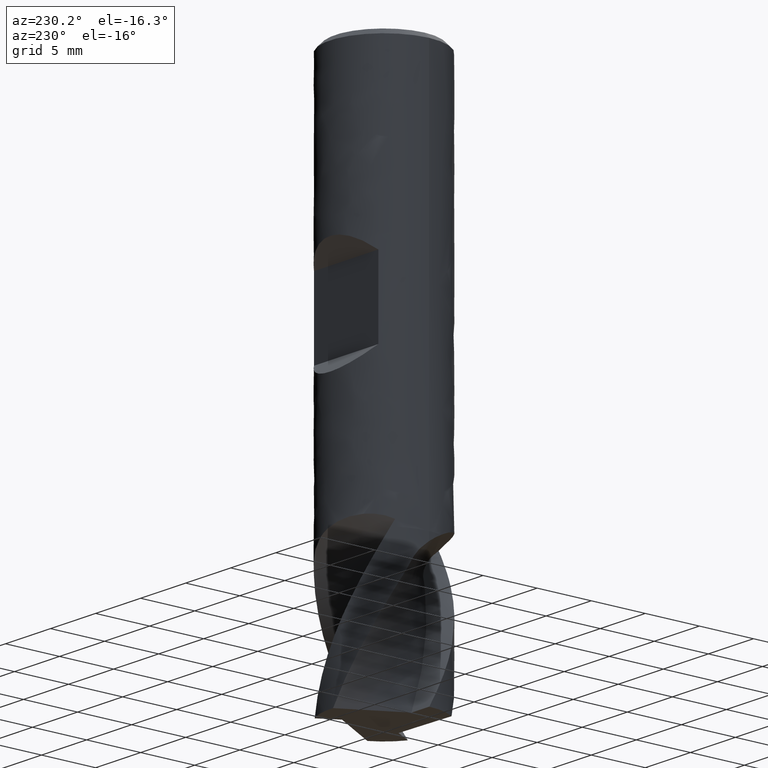
[diagram: clean part render]
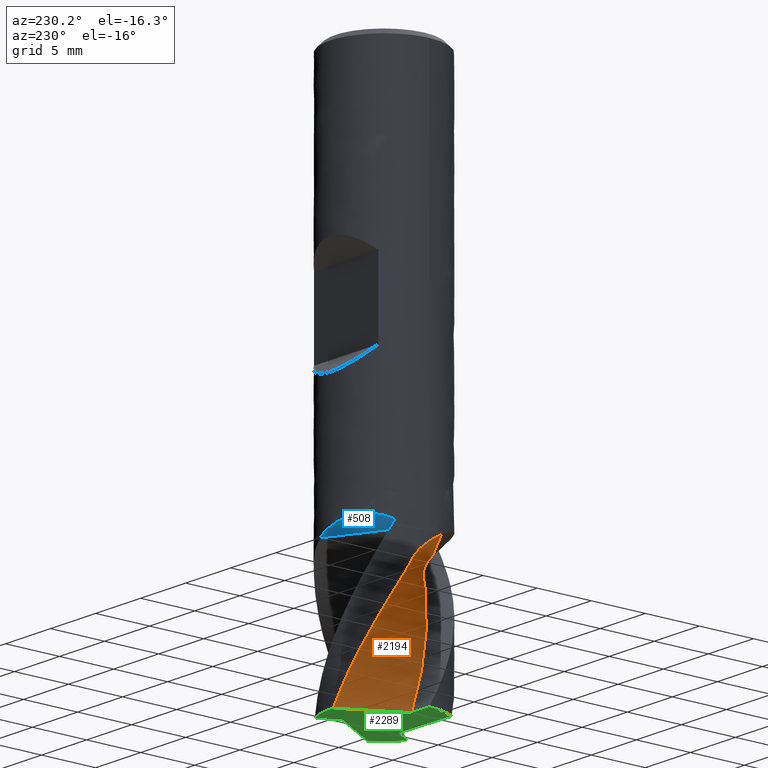
[diagram: same view with three faces highlighted in distinct colors, each labeled with its STEP entity id]
A machine part, auxiliary view with three faces highlighted in distinct colors.
Their STEP definitions:

[orange] entity #2194 — the highlighted face is a freeform B-spline surface patch.
#954 = VERTEX_POINT('', #955);
#955 = CARTESIAN_POINT('', (-4.83262241760878, -1.28287200017192, -37.));
#962 = EDGE_CURVE('', #954, #963, #965, .T.);
#963 = VERTEX_POINT('', #964);
#964 = CARTESIAN_POINT('', (-0.333327801241356, -4.21903375335413, -37.));
#965 = LINE('', #966, #967);
#966 = CARTESIAN_POINT('', (-4.83262241760878, -1.28287200017192, -37.));
#967 = VECTOR('', #968, 5.37258763406636);
#968 = DIRECTION('', (4.49929461636742, -2.9361617531822, 0.));
#1151 = VERTEX_POINT('', #1152);
#1152 = CARTESIAN_POINT('', (-0.335934032078548, 4.98870206828304, -50.));
#1159 = EDGE_CURVE('', #1160, #1151, #1162, .T.);
#1160 = VERTEX_POINT('', #1161);
#1161 = CARTESIAN_POINT('', (-5., 2.61752864053382E-15, -37.747486742402));
#1162 = B_SPLINE_CURVE_WITH_KNOTS('', 3, (#1163, #1164, #1165, #1166, #1167, #1168, #1169, #1170, #1171, #1172, #1173, #1174, #1175, #1176, #1177, #1178, #1179, #1180, #1181, #1182, #1183, #1184, #1185, #1186, #1187, #1188, #1189, #1190, #1191, #1192, #1193, #1194, #1195, #1196, #1197, #1198, #1199, #1200, #1201, #1202, #1203, #1204, #1205, #1206, #1207, #1208, #1209, #1210, #1211, #1212, #1213, #1214, #1215, #1216, #1217, #1218, #1219, #1220, #1221, #1222, #1223, #1224, #1225, #1226, #1227, #1228, #1229, #1230, #1231, #1232, #1233, #1234, #1235, #1236, #1237, #1238, #1239, #1240, #1241, #1242, #1243, #1244, #1245, #1246, #1247, #1248, #1249, #1250, #1251, #1252, #1253, #1254, #1255, #1256, #1257, #1258, #1259, #1260, #1261, #1262, #1263, #1264, #1265, #1266, #1267, #1268, #1269, #1270, #1271, #1272, #1273, #1274, #1275, #1276, #1277, #1278, #1279, #1280, #1281, #1282, #1283), .UNSPECIFIED., .F., .U., (4, 3, 3, 3, 3, 3, 3, 3, 3, 3, 3, 3, 3, 3, 3, 3, 3, 3, 3, 3, 3, 3, 3, 3, 3, 3, 3, 3, 3, 3, 3, 3, 3, 3, 3, 3, 3, 3, 3, 3, 4), (0., 0.196577432613111, 0.393216791482441, 0.589947623574505, 0.786785870466018, 0.983744420896576, 1.18083102076952, 1.37804542697353, 1.50951178441667, 1.59713722486628, 1.72860097193574, 1.86001944694283, 1.99139764544748, 2.12274571537726, 2.25407764694762, 2.38540995883167, 2.51676077240521, 2.60434652804085, 2.69194586129209, 2.88912373586872, 3.0863130984717, 3.28349301172111, 3.57927321042983, 3.71065384856833, 4.0062330977355, 4.30181648538944, 4.59742720954813, 4.79451364807451, 5.23809367782996, 5.68160773145634, 5.97721562004327, 6.64232879623569, 7.08571472827628, 8.08317299758597, 9.08029363226001, 10.0771334406636, 11.073676928656, 12.0699320782543, 13.0658974445978, 14.0615719014088, 14.4426781499086), .UNSPECIFIED.);
#1163 = CARTESIAN_POINT('', (-5., 2.59779616099459E-15, -37.747486742402));
#1164 = CARTESIAN_POINT('', (-5., 0.053518232721105, -37.7852945545142));
#1165 = CARTESIAN_POINT('', (-4.99913981913921, 0.106514228324898, -37.8238637857214));
#1166 = CARTESIAN_POINT('', (-4.99747529941144, 0.158873005172455, -37.8632264552372));
#1167 = CARTESIAN_POINT('', (-4.99581025532299, 0.21124827619733, -37.9026015248679));
#1168 = CARTESIAN_POINT('', (-4.99333971667362, 0.263005673376612, -37.9427870501373));
#1169 = CARTESIAN_POINT('', (-4.99012894485176, 0.314027250016087, -37.9838093264844));
#1170 = CARTESIAN_POINT('', (-4.98691667943448, 0.365072561009004, -38.0248506856837));
#1171 = CARTESIAN_POINT('', (-4.9829620407138, 0.415402908072984, -38.0667466742599));
#1172 = CARTESIAN_POINT('', (-4.9783408661061, 0.464889471657424, -38.1095258790006));
#1173 = CARTESIAN_POINT('', (-4.97371716834259, 0.514403054846501, -38.1523284411361));
#1174 = CARTESIAN_POINT('', (-4.96842397664497, 0.563094545153781, -38.1960345857921));
#1175 = CARTESIAN_POINT('', (-4.96254957425479, 0.610820532614649, -38.2406748629421));
#1176 = CARTESIAN_POINT('', (-4.95667158154916, 0.658575689229818, -38.285342423323));
#1177 = CARTESIAN_POINT('', (-4.95020854374881, 0.705388375835213, -38.3309677004034));
#1178 = CARTESIAN_POINT('', (-4.94326362985569, 0.751095656854666, -38.377582176318));
#1179 = CARTESIAN_POINT('', (-4.9363142008382, 0.796832653729737, -38.4242269578864));
#1180 = CARTESIAN_POINT('', (-4.92887807954395, 0.841489247947953, -38.4718889017942));
#1181 = CARTESIAN_POINT('', (-4.92107654864957, 0.884876037833103, -38.5205985073515));
#1182 = CARTESIAN_POINT('', (-4.91326995863377, 0.928290963098514, -38.5693397000182));
#1183 = CARTESIAN_POINT('', (-4.90509198279375, 0.970463919706136, -38.6191626268385));
#1184 = CARTESIAN_POINT('', (-4.89668630339498, 1.01116924703235, -38.6700932004378));
#1185 = CARTESIAN_POINT('', (-4.8910829396567, 1.03830408578532, -38.704044356048));
#1186 = CARTESIAN_POINT('', (-4.88537643535447, 1.0647979034191, -38.7385022995886));
#1187 = CARTESIAN_POINT('', (-4.87961602480804, 1.09057207484722, -38.7734721134875));
#1188 = CARTESIAN_POINT('', (-4.87577657476836, 1.10775117045416, -38.7967803225604));
#1189 = CARTESIAN_POINT('', (-4.8719130967562, 1.12461144271636, -38.8203230624263));
#1190 = CARTESIAN_POINT('', (-4.86803914449763, 1.14113754106989, -38.8440931251055));
#1191 = CARTESIAN_POINT('', (-4.86222708492604, 1.16593151417686, -38.8797551599193));
#1192 = CARTESIAN_POINT('', (-4.85638870312356, 1.18998603971144, -38.9159373812957));
#1193 = CARTESIAN_POINT('', (-4.85055466318893, 1.21330930080518, -38.9525746756273));
#1194 = CARTESIAN_POINT('', (-4.84472263231783, 1.2366245300867, -38.9891993532041));
#1195 = CARTESIAN_POINT('', (-4.8388930040463, 1.25921741164816, -39.0262925826803));
#1196 = CARTESIAN_POINT('', (-4.83308398134311, 1.28113201087426, -39.0637757136077));
#1197 = CARTESIAN_POINT('', (-4.82727673896128, 1.30303989381934, -39.1012473568854));
#1198 = CARTESIAN_POINT('', (-4.82148849665612, 1.32427655943618, -39.1391201852581));
#1199 = CARTESIAN_POINT('', (-4.8157210978796, 1.3449276216355, -39.1773049229231));
#1200 = CARTESIAN_POINT('', (-4.80995502172364, 1.36557394798762, -39.2154809037947));
#1201 = CARTESIAN_POINT('', (-4.80420860032474, 1.38563971428142, -39.2539770492752));
#1202 = CARTESIAN_POINT('', (-4.79846461419567, 1.40525348115999, -39.292696950021));
#1203 = CARTESIAN_POINT('', (-4.79272133381365, 1.42486483815146, -39.3314120933641));
#1204 = CARTESIAN_POINT('', (-4.78697971978287, 1.44402736705099, -39.3703559182475));
#1205 = CARTESIAN_POINT('', (-4.78120262437262, 1.46290856333964, -39.4094273721748));
#1206 = CARTESIAN_POINT('', (-4.77542551223293, 1.48178981430483, -39.4484989392461));
#1207 = CARTESIAN_POINT('', (-4.76961246043892, 1.50039154849054, -39.4877002449053));
#1208 = CARTESIAN_POINT('', (-4.76370765528555, 1.51891058820916, -39.5269257781724));
#1209 = CARTESIAN_POINT('', (-4.75780201828151, 1.53743223683276, -39.5661568374112));
#1210 = CARTESIAN_POINT('', (-4.75180423734257, 1.55587252387686, -39.6054128257467));
#1211 = CARTESIAN_POINT('', (-4.74564318960766, 1.57444298624322, -39.6445814795846));
#1212 = CARTESIAN_POINT('', (-4.74153495451806, 1.5868259166158, -39.6706994460461));
#1213 = CARTESIAN_POINT('', (-4.73735374755221, 1.59926719829604, -39.6967787957571));
#1214 = CARTESIAN_POINT('', (-4.73307585490377, 1.61182907025743, -39.7227838287231));
#1215 = CARTESIAN_POINT('', (-4.72879729909291, 1.6243928895705, -39.7487928930107));
#1216 = CARTESIAN_POINT('', (-4.72441782142328, 1.63708915968929, -39.7747220555861));
#1217 = CARTESIAN_POINT('', (-4.71993358851103, 1.64991724642342, -39.8005669557911));
#1218 = CARTESIAN_POINT('', (-4.70984000124355, 1.67879206525183, -39.858741399613));
#1219 = CARTESIAN_POINT('', (-4.69922244159106, 1.70831196486306, -39.9165093650979));
#1220 = CARTESIAN_POINT('', (-4.68811201218055, 1.73827666418459, -39.9739426022796));
#1221 = CARTESIAN_POINT('', (-4.67700093545143, 1.76824310931688, -40.0313791856508));
#1222 = CARTESIAN_POINT('', (-4.6653954067291, 1.79865838542319, -40.088488687047));
#1223 = CARTESIAN_POINT('', (-4.6533368544571, 1.82933215107356, -40.1453579791759));
#1224 = CARTESIAN_POINT('', (-4.64127888003332, 1.86000444683097, -40.2022245461169));
#1225 = CARTESIAN_POINT('', (-4.62876683678074, 1.89093785731348, -40.2588554848653));
#1226 = CARTESIAN_POINT('', (-4.61585448987996, 1.92194883601387, -40.3153495678072));
#1227 = CARTESIAN_POINT('', (-4.59648529314399, 1.96846692850612, -40.400093651538));
#1228 = CARTESIAN_POINT('', (-4.57620900391387, 2.01516486547846, -40.4845342557882));
#1229 = CARTESIAN_POINT('', (-4.55527449125555, 2.06142531014744, -40.5690468340087));
#1230 = CARTESIAN_POINT('', (-4.54597572939057, 2.08197342921598, -40.6065859137234));
#1231 = CARTESIAN_POINT('', (-4.53654810892245, 2.10243547241251, -40.6441406067896));
#1232 = CARTESIAN_POINT('', (-4.52702017637896, 2.12275488991496, -40.6817466495102));
#1233 = CARTESIAN_POINT('', (-4.50558429977474, 2.16846937459084, -40.7663524637992));
#1234 = CARTESIAN_POINT('', (-4.48364581807148, 2.21345705117956, -40.8512276956857));
#1235 = CARTESIAN_POINT('', (-4.46119470819205, 2.2578179234826, -40.9362895284908));
#1236 = CARTESIAN_POINT('', (-4.43874328396843, 2.30217941689448, -41.0213525522701));
#1237 = CARTESIAN_POINT('', (-4.41577767363698, 2.34591766520387, -41.1066081875777));
#1238 = CARTESIAN_POINT('', (-4.39226107220952, 2.38915103615341, -41.1919637477688));
#1239 = CARTESIAN_POINT('', (-4.36874229589093, 2.43238840546449, -41.2773272019172));
#1240 = CARTESIAN_POINT('', (-4.34467098976637, 2.4751238649121, -41.3627956217371));
#1241 = CARTESIAN_POINT('', (-4.31998340287785, 2.51748751712097, -41.4482670571631));
#1242 = CARTESIAN_POINT('', (-4.30352395747202, 2.54573176083228, -41.5052516636985));
#1243 = CARTESIAN_POINT('', (-4.28678951637659, 2.57381182951962, -41.5622391382876));
#1244 = CARTESIAN_POINT('', (-4.26975486111374, 2.60176736584876, -41.619197057285));
#1245 = CARTESIAN_POINT('', (-4.23141517145844, 2.6646865485659, -41.7473915469343));
#1246 = CARTESIAN_POINT('', (-4.19154540483958, 2.72698207648805, -41.8754451141239));
#1247 = CARTESIAN_POINT('', (-4.15024571595242, 2.78845127216141, -42.0034234568784));
#1248 = CARTESIAN_POINT('', (-4.10895216979808, 2.84991132517883, -42.131382764701));
#1249 = CARTESIAN_POINT('', (-4.0662238985085, 2.91055255935734, -42.2592829340042));
#1250 = CARTESIAN_POINT('', (-4.02219717746628, 2.97017337298386, -42.3872012123937));
#1251 = CARTESIAN_POINT('', (-3.99285279493254, 3.0099114211649, -42.4724604096552));
#1252 = CARTESIAN_POINT('', (-3.96293334569385, 3.04919515186997, -42.5577365777976));
#1253 = CARTESIAN_POINT('', (-3.93247780865614, 3.0879796444321, -42.6430451903619));
#1254 = CARTESIAN_POINT('', (-3.86395332147611, 3.17524415269106, -42.8349882488859));
#1255 = CARTESIAN_POINT('', (-3.7926766192824, 3.26003558475369, -43.0271081547369));
#1256 = CARTESIAN_POINT('', (-3.71875871321219, 3.34227970596544, -43.219266644398));
#1257 = CARTESIAN_POINT('', (-3.66948264885116, 3.39710629434712, -43.3473657019534));
#1258 = CARTESIAN_POINT('', (-3.61902191125974, 3.45081244179337, -43.4754989371327));
#1259 = CARTESIAN_POINT('', (-3.56740881904036, 3.50336899538617, -43.6036291492025));
#1260 = CARTESIAN_POINT('', (-3.45129799567272, 3.62160226622155, -43.8918758668854));
#1261 = CARTESIAN_POINT('', (-3.32932566689784, 3.73402527365286, -44.1802614498995));
#1262 = CARTESIAN_POINT('', (-3.20230707336729, 3.83995174551215, -44.4686931737917));
#1263 = CARTESIAN_POINT('', (-3.07533147499541, 3.94584236179048, -44.7570272649879));
#1264 = CARTESIAN_POINT('', (-2.94323689911607, 4.04531259880979, -45.0455802886614));
#1265 = CARTESIAN_POINT('', (-2.80675563897849, 4.13788868664473, -45.3341538614918));
#1266 = CARTESIAN_POINT('', (-2.6703128170418, 4.23043870160888, -45.6226461612671));
#1267 = CARTESIAN_POINT('', (-2.5294000298183, 4.31615466190341, -45.9113308670738));
#1268 = CARTESIAN_POINT('', (-2.38482988691516, 4.39460878924123, -46.2000424526435));
#1269 = CARTESIAN_POINT('', (-2.24030271890511, 4.47303959532012, -46.4886682158624));
#1270 = CARTESIAN_POINT('', (-2.09203375181537, 4.54426053356922, -46.7774922971031));
#1271 = CARTESIAN_POINT('', (-1.94085688369204, 4.60793604090001, -47.0663440049732));
#1272 = CARTESIAN_POINT('', (-1.78972375685635, 4.67159312445529, -47.3551121369245));
#1273 = CARTESIAN_POINT('', (-1.63559202525357, 4.72774818311272, -47.6440761871077));
#1274 = CARTESIAN_POINT('', (-1.47931871946122, 4.77615076460656, -47.9330680976278));
#1275 = CARTESIAN_POINT('', (-1.32309086928053, 4.82453926711911, -48.22197594834));
#1276 = CARTESIAN_POINT('', (-1.16462730748591, 4.86520932836348, -48.5110778474848));
#1277 = CARTESIAN_POINT('', (-1.00480372620403, 4.89799647527507, -48.8002106204703));
#1278 = CARTESIAN_POINT('', (-0.845026827472453, 4.93077404545447, -49.0892589412421));
#1279 = CARTESIAN_POINT('', (-0.683802276153335, 4.9556923993041, -49.3785072729862));
#1280 = CARTESIAN_POINT('', (-0.521986985809723, 4.97267831119672, -49.667780930315));
#1281 = CARTESIAN_POINT('', (-0.460050257563941, 4.97917987113378, -49.7785038654875));
#1282 = CARTESIAN_POINT('', (-0.398017190584607, 4.98452145266887, -49.889247118125));
#1283 = CARTESIAN_POINT('', (-0.335934032078548, 4.98870206828304, -50.));
#2134 = EDGE_CURVE('', #2135, #963, #2137, .T.);
#2135 = VERTEX_POINT('', #2136);
#2136 = CARTESIAN_POINT('', (-3.02947440070141, -0.0173182468015069, -50.));
#2137 = B_SPLINE_CURVE_WITH_KNOTS('', 3, (#2138, #2139, #2140, #2141, #2142, #2143, #2144, #2145, #2146, #2147, #2148, #2149, #2150, #2151, #2152, #2153), .UNSPECIFIED., .F., .U., (4, 1, 1, 1, 1, 1, 1, 1, 1, 1, 1, 1, 1, 4), (0.0499999999999156, 1.87333333333333, 2.81, 3.74666666666667, 4.68333333333333, 5.62, 6.55666666666667, 7.49333333333333, 8.43, 9.36666666666667, 10.3033333333333, 11.24, 12.1766666666667, 13.05), .UNSPECIFIED.);
#2138 = CARTESIAN_POINT('', (-3.02947440070141, -0.017318246801479, -50.0000000000001));
#2139 = CARTESIAN_POINT('', (-3.02251142317346, -0.227795065831648, -49.3922222222223));
#2140 = CARTESIAN_POINT('', (-2.98029649508201, -0.544351555401404, -48.4722222222223));
#2141 = CARTESIAN_POINT('', (-2.86203096460301, -0.952585198217634, -47.24));
#2142 = CARTESIAN_POINT('', (-2.74128128772324, -1.25179429833242, -46.3033333333333));
#2143 = CARTESIAN_POINT('', (-2.59091559967963, -1.5370355752355, -45.3666666666667));
#2144 = CARTESIAN_POINT('', (-2.41240230243518, -1.80549743086473, -44.43));
#2145 = CARTESIAN_POINT('', (-2.20750594552115, -2.05478741000475, -43.4933333333333));
#2146 = CARTESIAN_POINT('', (-1.97798192390149, -2.2816291122725, -42.5566666666667));
#2147 = CARTESIAN_POINT('', (-1.72666874010608, -2.48680875504218, -41.62));
#2148 = CARTESIAN_POINT('', (-1.45335232014714, -2.65679337298662, -40.6833333333333));
#2149 = CARTESIAN_POINT('', (-1.17013875442645, -2.83240975375238, -39.7466666666667));
#2150 = CARTESIAN_POINT('', (-0.83193402638322, -2.82345165934921, -38.81));
#2151 = CARTESIAN_POINT('', (-0.622113907592222, -3.27345294085501, -37.8944444444444));
#2152 = CARTESIAN_POINT('', (-0.446938344235913, -3.86610592519163, -37.2911111111111));
#2153 = CARTESIAN_POINT('', (-0.333327801241356, -4.21903375335413, -37.));
#2194 = ADVANCED_FACE('', (#2195), #2231, .T.);
#2195 = FACE_OUTER_BOUND('', #2196, .T.);
#2196 = EDGE_LOOP('', (#2197, #2198, #2223, #2224, #2230));
#2197 = ORIENTED_EDGE('', *, *, #962, .F.);
#2198 = ORIENTED_EDGE('', *, *, #2199, .T.);
#2199 = EDGE_CURVE('', #954, #1160, #2200, .T.);
#2200 = B_SPLINE_CURVE_WITH_KNOTS('', 3, (#2201, #2202, #2203, #2204, #2205, #2206, #2207, #2208, #2209, #2210, #2211, #2212, #2213, #2214, #2215, #2216, #2217, #2218, #2219, #2220, #2221, #2222), .UNSPECIFIED., .F., .U., (4, 3, 3, 3, 3, 3, 3, 4), (4.37843344536917, 4.40068822695221, 4.69241382342843, 4.98418490554318, 5.27605975062035, 5.47151517232291, 5.6670352339067, 5.87745557183538), .UNSPECIFIED.);
#2201 = CARTESIAN_POINT('', (-4.83262241760878, -1.28287200017192, -37.));
#2202 = CARTESIAN_POINT('', (-4.83434350081772, -1.27638862124013, -37.0031676899266));
#2203 = CARTESIAN_POINT('', (-4.83605079000552, -1.26990458662014, -37.0063430230116));
#2204 = CARTESIAN_POINT('', (-4.83774401238029, -1.26342109792534, -37.0095254688619));
#2205 = CARTESIAN_POINT('', (-4.85993952597826, -1.17843263826875, -37.0512423875605));
#2206 = CARTESIAN_POINT('', (-4.87974901816519, -1.09340919283693, -37.094243851738));
#2207 = CARTESIAN_POINT('', (-4.89721200865373, -1.00862011793469, -37.1385364825562));
#2208 = CARTESIAN_POINT('', (-4.91467772195878, -0.923817822782802, -37.1828360194486));
#2209 = CARTESIAN_POINT('', (-4.92980945724985, -0.839184995653843, -37.2284608114717));
#2210 = CARTESIAN_POINT('', (-4.94266904860239, -0.754998460917609, -37.2754308833527));
#2211 = CARTESIAN_POINT('', (-4.95553321322958, -0.670781986805009, -37.3224176592668));
#2212 = CARTESIAN_POINT('', (-4.96613321394204, -0.586947942954347, -37.3707861037915));
#2213 = CARTESIAN_POINT('', (-4.97455531176972, -0.503785122987622, -37.4205723669338));
#2214 = CARTESIAN_POINT('', (-4.98019521089187, -0.448094732668882, -37.4539119822573));
#2215 = CARTESIAN_POINT('', (-4.98486155330427, -0.392681858160046, -37.4879017644717));
#2216 = CARTESIAN_POINT('', (-4.9885870581079, -0.337637621835842, -37.5225573649906));
#2217 = CARTESIAN_POINT('', (-4.99231379498882, -0.282575181601671, -37.5572244266083));
#2218 = CARTESIAN_POINT('', (-4.99510030926389, -0.227862515191407, -37.5925696810089));
#2219 = CARTESIAN_POINT('', (-4.99698553951473, -0.173595846383299, -37.628613274294));
#2220 = CARTESIAN_POINT('', (-4.99901444019758, -0.11519360010551, -37.6674036931276));
#2221 = CARTESIAN_POINT('', (-5., -0.0572869655729148, -37.7070165190643));
#2222 = CARTESIAN_POINT('', (-5., 2.59779616099459E-15, -37.747486742402));
#2223 = ORIENTED_EDGE('', *, *, #1159, .T.);
#2224 = ORIENTED_EDGE('', *, *, #2225, .F.);
#2225 = EDGE_CURVE('', #2135, #1151, #2226, .T.);
#2226 = LINE('', #2227, #2228);
#2227 = CARTESIAN_POINT('', (-3.02947440070141, -0.0173182468015069, -50.));
#2228 = VECTOR('', #2229, 5.68466350037011);
#2229 = DIRECTION('', (2.69354036862287, 5.00602031508454, -7.105427357601E-15));
#2230 = ORIENTED_EDGE('', *, *, #2134, .T.);
#2231 = B_SPLINE_SURFACE_WITH_KNOTS('', 3, 1, ((#2232, #2233), (#2234, #2235), (#2236, #2237), (#2238, #2239), (#2240, #2241), (#2242, #2243), (#2244, #2245), (#2246, #2247), (#2248, #2249), (#2250, #2251), (#2252, #2253), (#2254, #2255), (#2256, #2257), (#2258, #2259), (#2260, #2261), (#2262, #2263)), .UNSPECIFIED., .F., .F., .U., (4, 1, 1, 1, 1, 1, 1, 1, 1, 1, 1, 1, 1, 4), (2, 2), (0.0499999999946112, 1.87333333333333, 2.81, 3.74666666666667, 4.68333333333333, 5.62, 6.55666666666667, 7.49333333333333, 8.43, 9.36666666666667, 10.3033333333333, 11.24, 12.1766666666667, 13.050000000001), (0., 0.906872416542212), .UNSPECIFIED.);
#2232 = CARTESIAN_POINT('', (-3.02947440070147, -0.017318246799642, -50.0000000000054));
#2233 = CARTESIAN_POINT('', (-0.310920937347919, 5.0351896063235, -50.0000000000054));
#2234 = CARTESIAN_POINT('', (-3.02251142317363, -0.227795065830431, -49.3922222222258));
#2235 = CARTESIAN_POINT('', (-0.66021113149479, 5.0040117663221, -49.3922222222258));
#2236 = CARTESIAN_POINT('', (-2.98029649508218, -0.544351555400818, -48.472222222224));
#2237 = CARTESIAN_POINT('', (-1.18258639648195, 4.90434511002439, -48.472222222224));
#2238 = CARTESIAN_POINT('', (-2.86203096460301, -0.952585198217634, -47.24));
#2239 = CARTESIAN_POINT('', (-1.85030163540979, 4.66969909378064, -47.24));
#2240 = CARTESIAN_POINT('', (-2.74128128772324, -1.25179429833242, -46.3033333333333));
#2241 = CARTESIAN_POINT('', (-2.33652138919828, 4.44107612934586, -46.3033333333333));
#2242 = CARTESIAN_POINT('', (-2.59091559967963, -1.5370355752355, -45.3666666666667));
#2243 = CARTESIAN_POINT('', (-2.79676018052072, 4.16451439124337, -45.3666666666667));
#2244 = CARTESIAN_POINT('', (-2.41240230243518, -1.80549743086473, -44.43));
#2245 = CARTESIAN_POINT('', (-3.22648019676706, 3.84271708107353, -44.43));
#2246 = CARTESIAN_POINT('', (-2.20750594552115, -2.05478741000475, -43.4933333333333));
#2247 = CARTESIAN_POINT('', (-3.62186807149287, 3.47884074145455, -43.4933333333333));
#2248 = CARTESIAN_POINT('', (-1.97798192390149, -2.2816291122725, -42.5566666666667));
#2249 = CARTESIAN_POINT('', (-3.97763993897878, 3.07610901430361, -42.5566666666667));
#2250 = CARTESIAN_POINT('', (-1.72666874010608, -2.48680875504218, -41.62));
#2251 = CARTESIAN_POINT('', (-4.29536730666448, 2.63916797378573, -41.62));
#2252 = CARTESIAN_POINT('', (-1.45335232014714, -2.65679337298662, -40.6833333333333));
#2253 = CARTESIAN_POINT('', (-4.55253033791321, 2.16892199296872, -40.6833333333333));
#2254 = CARTESIAN_POINT('', (-1.17013875442645, -2.83240975375238, -39.7466666666667));
#2255 = CARTESIAN_POINT('', (-4.8181350375525, 1.68169655078419, -39.7466666666667));
#2256 = CARTESIAN_POINT('', (-0.83193402638322, -2.82345165934921, -38.81));
#2257 = CARTESIAN_POINT('', (-4.7717451258643, 1.12023180828964, -38.81));
#2258 = CARTESIAN_POINT('', (-0.622113907592148, -3.27345294085516, -37.8944444444441));
#2259 = CARTESIAN_POINT('', (-5.50037695951885, 0.729477466416822, -37.8944444444441));
#2260 = CARTESIAN_POINT('', (-0.446938344235726, -3.86610592519226, -37.2911111111105));
#2261 = CARTESIAN_POINT('', (-6.4694077967633, 0.383038334312795, -37.2911111111105));
#2262 = CARTESIAN_POINT('', (-0.333327801240979, -4.2190337533553, -36.999999999999));
#2263 = CARTESIAN_POINT('', (-7.04560512748942, 0.161282194478712, -36.999999999999));

[blue] entity #508 — the highlighted face is a freeform B-spline surface patch.
#508 = ADVANCED_FACE('', (#509), #621, .T.);
#509 = FACE_OUTER_BOUND('', #510, .T.);
#510 = EDGE_LOOP('', (#511, #521, #530, #560, #569));
#511 = ORIENTED_EDGE('', *, *, #512, .T.);
#512 = EDGE_CURVE('', #513, #515, #517, .T.);
#513 = VERTEX_POINT('', #514);
#514 = CARTESIAN_POINT('', (1.30531146685175, 4.82660978063333, -37.));
#515 = VERTEX_POINT('', #516);
#516 = CARTESIAN_POINT('', (-3.48712650920801, 2.3981872203397, -37.));
#517 = LINE('', #518, #519);
#518 = CARTESIAN_POINT('', (1.30531146685175, 4.82660978063333, -37.));
#519 = VECTOR('', #520, 5.37258763406636);
#520 = DIRECTION('', (-4.79243797605975, -2.42842256029364, 0.));
#521 = ORIENTED_EDGE('', *, *, #522, .T.);
#522 = EDGE_CURVE('', #515, #523, #525, .T.);
#523 = VERTEX_POINT('', #524);
#524 = CARTESIAN_POINT('', (-4.29655422340235, 2.55726842653709, -36.4270534697552));
#525 = B_SPLINE_CURVE_WITH_KNOTS('', 3, (#526, #527, #528, #529), .UNSPECIFIED., .F., .U., (4, 4), (13.05, 13.6229465302448), .UNSPECIFIED.);
#526 = CARTESIAN_POINT('', (-3.48712650920801, 2.3981872203397, -37.));
#527 = CARTESIAN_POINT('', (-3.72491008041251, 2.44940752336379, -36.8090178232517));
#528 = CARTESIAN_POINT('', (-3.99391522137065, 2.504197736417, -36.6180356465034));
#529 = CARTESIAN_POINT('', (-4.29655422340237, 2.55726842653709, -36.4270534697552));
#530 = ORIENTED_EDGE('', *, *, #531, .F.);
#531 = EDGE_CURVE('', #532, #523, #534, .T.);
#532 = VERTEX_POINT('', #533);
#533 = CARTESIAN_POINT('', (-2.76104906361684, 4.1685258867255, -36.));
#534 = B_SPLINE_CURVE_WITH_KNOTS('', 3, (#535, #536, #537, #538, #539, #540, #541, #542, #543, #544, #545, #546, #547, #548, #549, #550, #551, #552, #553, #554, #555, #556, #557, #558, #559), .UNSPECIFIED., .F., .U., (4, 3, 3, 3, 3, 3, 3, 3, 4), (0., 0.296061269631135, 0.591451144377523, 0.886115637160019, 1.18000237767091, 1.47306449964201, 1.7652671341823, 2.05659796712953, 2.30128599850761), .UNSPECIFIED.);
#535 = CARTESIAN_POINT('', (-2.76104906361666, 4.16852588672562, -36.));
#536 = CARTESIAN_POINT('', (-2.84332495315662, 4.11402993925029, -36.0001068530487));
#537 = CARTESIAN_POINT('', (-2.92403636189943, 4.05705979420483, -36.0021142772936));
#538 = CARTESIAN_POINT('', (-3.00287726002842, 3.99784043718658, -36.0061543571147));
#539 = CARTESIAN_POINT('', (-3.0815393661939, 3.93875537525337, -36.0101852750183));
#540 = CARTESIAN_POINT('', (-3.15844119622979, 3.87735430700814, -36.0162447969732));
#541 = CARTESIAN_POINT('', (-3.2332840231431, 3.81390540334806, -36.0244793384385));
#542 = CARTESIAN_POINT('', (-3.30794306028767, 3.75061230966753, -36.0326936585342));
#543 = CARTESIAN_POINT('', (-3.38065380683767, 3.68519542244238, -36.0430833599079));
#544 = CARTESIAN_POINT('', (-3.45112708568732, 3.61797206158856, -36.0558112549946));
#545 = CARTESIAN_POINT('', (-3.52141435382289, 3.55092613345191, -36.0685055554354));
#546 = CARTESIAN_POINT('', (-3.58957524941833, 3.48198760222726, -36.0835436660908));
#547 = CARTESIAN_POINT('', (-3.65533248537474, 3.41153109635016, -36.1011069375489));
#548 = CARTESIAN_POINT('', (-3.72090521271466, 3.34127228479875, -36.1186209281199));
#549 = CARTESIAN_POINT('', (-3.78418574812639, 3.26939775005839, -36.1386722196921));
#550 = CARTESIAN_POINT('', (-3.8449111122008, 3.19635081605177, -36.1614625384129));
#551 = CARTESIAN_POINT('', (-3.90545838199676, 3.12351811280693, -36.1841860180883));
#552 = CARTESIAN_POINT('', (-3.9635623940773, 3.04940154507477, -36.2096692083785));
#553 = CARTESIAN_POINT('', (-4.01897695536385, 2.97452924548648, -36.238134910935));
#554 = CARTESIAN_POINT('', (-4.07422618445589, 2.89988033125594, -36.2665156846034));
#555 = CARTESIAN_POINT('', (-4.12689845065616, 2.82434749601878, -36.2979115487472));
#556 = CARTESIAN_POINT('', (-4.17676687373041, 2.74856662326172, -36.3325641926484));
#557 = CARTESIAN_POINT('', (-4.21865123642049, 2.68491845947675, -36.3616688608103));
#558 = CARTESIAN_POINT('', (-4.25862152090574, 2.62100045850744, -36.3931151656992));
#559 = CARTESIAN_POINT('', (-4.29655422340235, 2.55726842653709, -36.4270534697552));
#560 = ORIENTED_EDGE('', *, *, #561, .T.);
#561 = EDGE_CURVE('', #532, #562, #564, .T.);
#562 = VERTEX_POINT('', #563);
#563 = CARTESIAN_POINT('', (-2.74713867681075, 4.17770619962325, -36.));
#564 = CIRCLE('', #565, 5.);
#565 = AXIS2_PLACEMENT_3D('', #566, #567, #568);
#566 = CARTESIAN_POINT('', (-4.71844785465692E-16, 2.05962794139954E-16, -36.));
#567 = DIRECTION('', (3.74939945665465E-33, 6.12323399573677E-17, -1.));
#568 = DIRECTION('', (-1., 4.60912628822424E-16, 2.4473359322044E-32));
#569 = ORIENTED_EDGE('', *, *, #570, .T.);
#570 = EDGE_CURVE('', #562, #513, #571, .T.);
#571 = B_SPLINE_CURVE_WITH_KNOTS('', 3, (#572, #573, #574, #575, #576, #577, #578, #579, #580, #581, #582, #583, #584, #585, #586, #587, #588, #589, #590, #591, #592, #593, #594, #595, #596, #597, #598, #599, #600, #601, #602, #603, #604, #605, #606, #607, #608, #609, #610, #611, #612, #613, #614, #615, #616, #617, #618, #619, #620), .UNSPECIFIED., .F., .U., (4, 3, 3, 3, 3, 3, 3, 3, 3, 3, 3, 3, 3, 3, 3, 3, 4), (0., 0.29517117229672, 0.589721063477278, 0.883708213759907, 1.17718676336265, 1.47020684153445, 1.76281508480047, 2.05505522278446, 2.34696870140481, 2.63859533190958, 2.92997396540007, 2.98821629240786, 3.28246639725872, 3.57646704936943, 3.87026018613107, 4.16388908327347, 4.37844184585362), .UNSPECIFIED.);
#572 = CARTESIAN_POINT('', (-2.74713867681055, 4.17770619962338, -36.));
#573 = CARTESIAN_POINT('', (-2.66492949578337, 4.23176457759381, -36.000106400413));
#574 = CARTESIAN_POINT('', (-2.58107498937315, 4.2834236864365, -36.0020950400875));
#575 = CARTESIAN_POINT('', (-2.49588174403879, 4.33250208537444, -36.0058487984827));
#576 = CARTESIAN_POINT('', (-2.41086781484204, 4.38147718329475, -36.0095946559059));
#577 = CARTESIAN_POINT('', (-2.32441988265795, 4.42794092455115, -36.0151027103386));
#578 = CARTESIAN_POINT('', (-2.23684381993405, 4.47174794965267, -36.022267737285));
#579 = CARTESIAN_POINT('', (-2.14943507226831, 4.51547128093735, -36.0294190753665));
#580 = CARTESIAN_POINT('', (-2.06080270520889, 4.55659826494098, -36.0382292739418));
#581 = CARTESIAN_POINT('', (-1.97125039232763, 4.59501598373152, -36.0486034073526));
#582 = CARTESIAN_POINT('', (-1.88185300583405, 4.63336723948829, -36.05895959341));
#583 = CARTESIAN_POINT('', (-1.79144045997325, 4.66906106257266, -36.0708857468491));
#584 = CARTESIAN_POINT('', (-1.70031291608482, 4.70201403521886, -36.08429598392));
#585 = CARTESIAN_POINT('', (-1.60932773140969, 4.73491552881644, -36.0976852715533));
#586 = CARTESIAN_POINT('', (-1.51753309115729, 4.76511990910698, -36.1125682711563));
#587 = CARTESIAN_POINT('', (-1.42522448968971, 4.79257082931371, -36.1288671732527));
#588 = CARTESIAN_POINT('', (-1.33304562644493, 4.81998316770309, -36.14514316751));
#589 = CARTESIAN_POINT('', (-1.24025955087214, 4.84467812555621, -36.1628478321714));
#590 = CARTESIAN_POINT('', (-1.14715608470767, 4.8666243862988, -36.1819107108028));
#591 = CARTESIAN_POINT('', (-1.054169744012, 4.88854303833697, -36.200949608065));
#592 = CARTESIAN_POINT('', (-0.960774382134614, 4.90774185084275, -36.2213622458567));
#593 = CARTESIAN_POINT('', (-0.867253285153234, 4.92421280403182, -36.2430850125438));
#594 = CARTESIAN_POINT('', (-0.773836723921931, 4.94066534636493, -36.2647834980175));
#595 = CARTESIAN_POINT('', (-0.680204792103892, 4.95441209753374, -36.2878100794312));
#596 = CARTESIAN_POINT('', (-0.586633516268407, 4.9654668579692, -36.3121076707438));
#597 = CARTESIAN_POINT('', (-0.49315418803422, 4.97651075546948, -36.3363813860835));
#598 = CARTESIAN_POINT('', (-0.39964820913118, 4.98487836859708, -36.361946254496));
#599 = CARTESIAN_POINT('', (-0.306383761969461, 4.99060407069139, -36.3887515705108));
#600 = CARTESIAN_POINT('', (-0.213198626166909, 4.99632490369325, -36.4155340914938));
#601 = CARTESIAN_POINT('', (-0.12017033675308, 4.99941359052961, -36.4435791627803));
#602 = CARTESIAN_POINT('', (-0.0275587908560609, 4.99992405072827, -36.4728424826864));
#603 = CARTESIAN_POINT('', (-0.00904709740683275, 5.00002608425578, -36.4786917923179));
#604 = CARTESIAN_POINT('', (0.00944994241795781, 5.00002522319183, -36.4845903966312));
#605 = CARTESIAN_POINT('', (0.0279302916828041, 4.99992198927208, -36.4905379727905));
#606 = CARTESIAN_POINT('', (0.121296147551415, 4.99940043401718, -36.5205861353284));
#607 = CARTESIAN_POINT('', (0.214284571737738, 4.99626294960492, -36.5519001608551));
#608 = CARTESIAN_POINT('', (0.306637912029837, 4.99058846138469, -36.5844425617222));
#609 = CARTESIAN_POINT('', (0.398912959082892, 4.98491878375454, -36.616957374524));
#610 = CARTESIAN_POINT('', (0.490633823570175, 4.97671155972015, -36.6507265669242));
#611 = CARTESIAN_POINT('', (0.581552131272978, 4.96606455038714, -36.6857200680542));
#612 = CARTESIAN_POINT('', (0.672406265837983, 4.95542505606419, -36.7206888696179));
#613 = CARTESIAN_POINT('', (0.762535358172617, 4.94234031272442, -36.7569095889329));
#614 = CARTESIAN_POINT('', (0.851700150797158, 4.9269267148124, -36.7943602290534));
#615 = CARTESIAN_POINT('', (0.940815097493533, 4.91152173358721, -36.8317899330862));
#616 = CARTESIAN_POINT('', (1.02903976664688, 4.89377789975919, -36.870478732497));
#617 = CARTESIAN_POINT('', (1.11614357725645, 4.87383047663223, -36.9104136345642));
#618 = CARTESIAN_POINT('', (1.17978977618107, 4.85925502176422, -36.9395938128275));
#619 = CARTESIAN_POINT('', (1.24288460491844, 4.84349254149958, -36.9694610966089));
#620 = CARTESIAN_POINT('', (1.30531146685175, 4.82660978063333, -37.));
#621 = B_SPLINE_SURFACE_WITH_KNOTS('', 3, 1, ((#622, #623), (#624, #625), (#626, #627), (#628, #629)), .UNSPECIFIED., .F., .F., .U., (4, 4), (2, 2), (13.05, 14.05), (0., 0.607884028498924), .UNSPECIFIED.);
#622 = CARTESIAN_POINT('', (-3.48712650920799, 2.39818722033969, -37.));
#623 = CARTESIAN_POINT('', (1.30531146685175, 4.82660978063333, -37.));
#624 = CARTESIAN_POINT('', (-3.90214529133219, 2.48758527115292, -36.6666666666667));
#625 = CARTESIAN_POINT('', (1.24220599389981, 5.32418354767562, -36.6666666666667));
#626 = CARTESIAN_POINT('', (-4.41227415352629, 2.58785831740652, -36.3333333333333));
#627 = CARTESIAN_POINT('', (1.15392602223841, 5.93201738826361, -36.3333333333333));
#628 = CARTESIAN_POINT('', (-5.03033898467254, 2.67088302305776, -36.));
#629 = CARTESIAN_POINT('', (1.00410015017258, 6.65337755700156, -36.));

[green] entity #2289 — the highlighted planar face has unit normal (0, 0, -1).
#1028 = VERTEX_POINT('', #1029);
#1029 = CARTESIAN_POINT('', (2.47520601871092, 4.34434749587752, -50.));
#1150 = EDGE_CURVE('', #1151, #1028, #1153, .T.);
#1151 = VERTEX_POINT('', #1152);
#1152 = CARTESIAN_POINT('', (-0.335934032078548, 4.98870206828304, -50.));
#1153 = CIRCLE('', #1154, 5.);
#1154 = AXIS2_PLACEMENT_3D('', #1155, #1156, #1157);
#1155 = CARTESIAN_POINT('', (1.87469972832732E-31, 3.06161699786838E-15, -50.));
#1156 = DIRECTION('', (3.74939945665464E-33, 6.12323399573677E-17, -1.));
#1157 = DIRECTION('', (-1., 6.12323399573677E-17, 0.));
#1315 = VERTEX_POINT('', #1316);
#1316 = CARTESIAN_POINT('', (1.49973915867159, 2.63226091452282, -50.));
#1335 = EDGE_CURVE('', #1315, #1028, #1336, .T.);
#1336 = LINE('', #1337, #1338);
#1337 = CARTESIAN_POINT('', (1.49973915867159, 2.63226091452282, -50.));
#1338 = VECTOR('', #1339, 1.97047609909123);
#1339 = DIRECTION('', (0.975466860039327, 1.7120865813547, 0.));
#1380 = VERTEX_POINT('', #1381);
#1381 = CARTESIAN_POINT('', (4.48830973908435, -2.20342362836576, -50.));
#1529 = EDGE_CURVE('', #1380, #1315, #1530, .T.);
#1530 = LINE('', #1531, #1532);
#1531 = CARTESIAN_POINT('', (4.48830973908435, -2.20342362836577, -50.));
#1532 = VECTOR('', #1533, 5.68466350037012);
#1533 = DIRECTION('', (-2.98857058041276, 4.83568454288858, 0.));
#1574 = VERTEX_POINT('', #1575);
#1575 = CARTESIAN_POINT('', (2.52471228494179, -4.31576503974255, -50.));
#1696 = EDGE_CURVE('', #1380, #1574, #1697, .T.);
#1697 = CIRCLE('', #1698, 5.);
#1698 = AXIS2_PLACEMENT_3D('', #1699, #1700, #1701);
#1699 = CARTESIAN_POINT('', (1.87469972832732E-31, 3.06161699786838E-15, -50.));
#1700 = DIRECTION('', (3.74939945665464E-33, 6.12323399573677E-17, -1.));
#1701 = DIRECTION('', (-1., 6.12323399573677E-17, 0.));
#1728 = VERTEX_POINT('', #1729);
#1729 = CARTESIAN_POINT('', (1.52973524202982, -2.6149426677213, -50.));
#1748 = EDGE_CURVE('', #1728, #1574, #1749, .T.);
#1749 = LINE('', #1750, #1751);
#1750 = CARTESIAN_POINT('', (1.52973524202982, -2.6149426677213, -50.));
#1751 = VECTOR('', #1752, 1.97047609909124);
#1752 = DIRECTION('', (0.994977042911964, -1.70082237202125, 0.));
#1793 = VERTEX_POINT('', #1794);
#1794 = CARTESIAN_POINT('', (-4.15237570700581, -2.78527843991727, -50.));
#1942 = EDGE_CURVE('', #1793, #1728, #1943, .T.);
#1943 = LINE('', #1944, #1945);
#1944 = CARTESIAN_POINT('', (-4.15237570700581, -2.78527843991727, -50.));
#1945 = VECTOR('', #1946, 5.68466350037012);
#1946 = DIRECTION('', (5.68211094903563, 0.170335772195964, 0.));
#1987 = VERTEX_POINT('', #1988);
#1988 = CARTESIAN_POINT('', (-4.9999183036527, -0.0285824561349616, -50.));
#2103 = EDGE_CURVE('', #1793, #1987, #2104, .T.);
#2104 = CIRCLE('', #2105, 5.);
#2105 = AXIS2_PLACEMENT_3D('', #2106, #2107, #2108);
#2106 = CARTESIAN_POINT('', (1.87469972832732E-31, 3.06161699786838E-15, -50.));
#2107 = DIRECTION('', (3.74939945665464E-33, 6.12323399573677E-17, -1.));
#2108 = DIRECTION('', (-1., 6.12323399573677E-17, 0.));
#2135 = VERTEX_POINT('', #2136);
#2136 = CARTESIAN_POINT('', (-3.02947440070141, -0.0173182468015069, -50.));
#2155 = EDGE_CURVE('', #2135, #1987, #2156, .T.);
#2156 = LINE('', #2157, #2158);
#2157 = CARTESIAN_POINT('', (-3.02947440070141, -0.0173182468015069, -50.));
#2158 = VECTOR('', #2159, 1.97047609909124);
#2159 = DIRECTION('', (-1.97044390295129, -0.0112642093334525, 0.));
#2225 = EDGE_CURVE('', #2135, #1151, #2226, .T.);
#2226 = LINE('', #2227, #2228);
#2227 = CARTESIAN_POINT('', (-3.02947440070141, -0.0173182468015069, -50.));
#2228 = VECTOR('', #2229, 5.68466350037011);
#2229 = DIRECTION('', (2.69354036862287, 5.00602031508454, -7.105427357601E-15));
#2289 = ADVANCED_FACE('', (#2290), #2301, .T.);
#2290 = FACE_OUTER_BOUND('', #2291, .T.);
#2291 = EDGE_LOOP('', (#2292, #2293, #2294, #2295, #2296, #2297, #2298, #2299, #2300));
#2292 = ORIENTED_EDGE('', *, *, #2155, .F.);
#2293 = ORIENTED_EDGE('', *, *, #2225, .T.);
#2294 = ORIENTED_EDGE('', *, *, #1150, .T.);
#2295 = ORIENTED_EDGE('', *, *, #1335, .F.);
#2296 = ORIENTED_EDGE('', *, *, #1529, .F.);
#2297 = ORIENTED_EDGE('', *, *, #1696, .T.);
#2298 = ORIENTED_EDGE('', *, *, #1748, .F.);
#2299 = ORIENTED_EDGE('', *, *, #1942, .F.);
#2300 = ORIENTED_EDGE('', *, *, #2103, .T.);
#2301 = PLANE('', #2302);
#2302 = AXIS2_PLACEMENT_3D('', #2303, #2304, #2305);
#2303 = CARTESIAN_POINT('', (7.77817459305203, -7.77817459305202, -50.));
#2304 = DIRECTION('', (0., 0., -1.));
#2305 = DIRECTION('', (-1., 0., 0.));